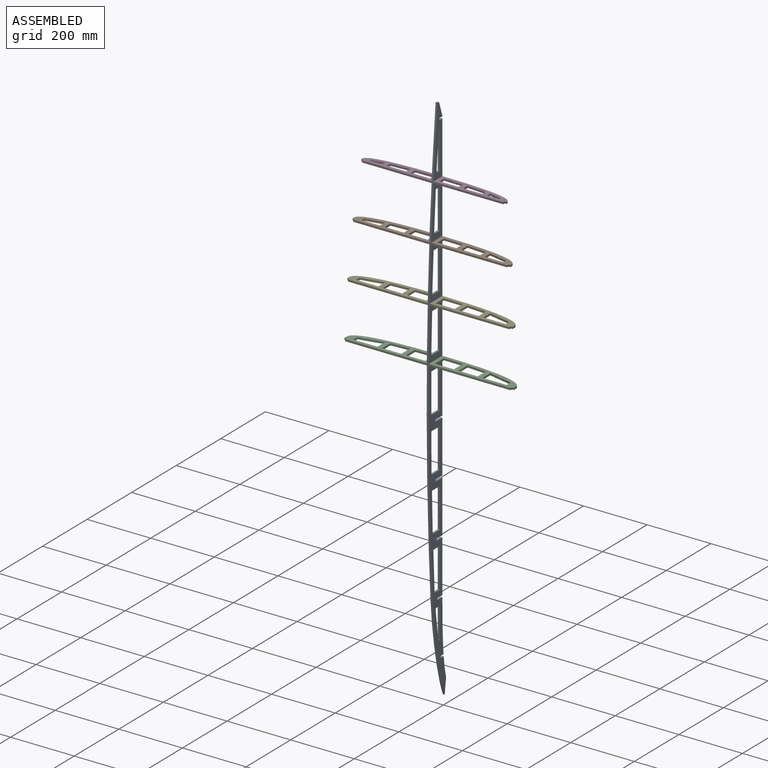
[diagram: assembled view]
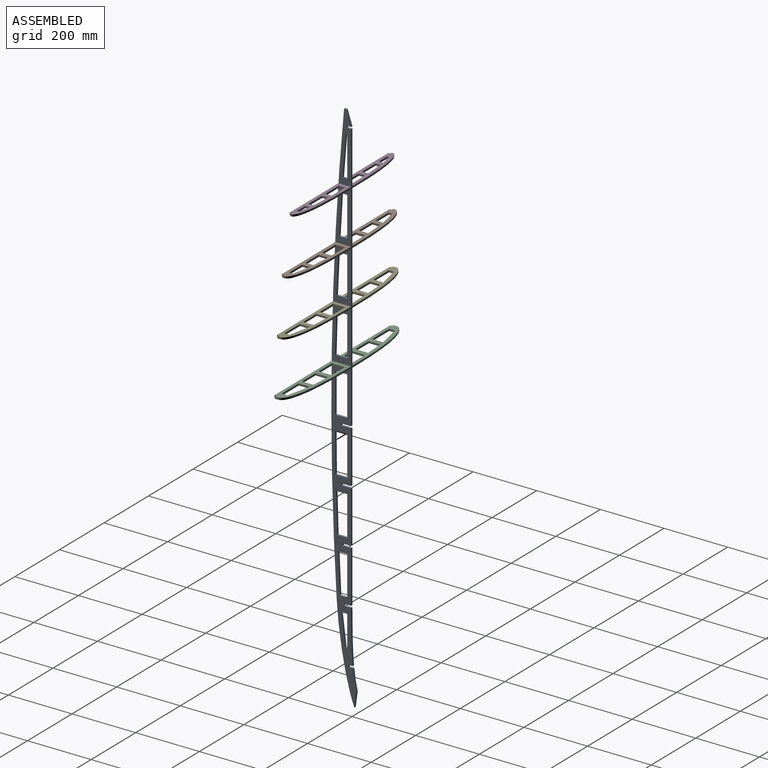
[diagram: assembled view, second angle]
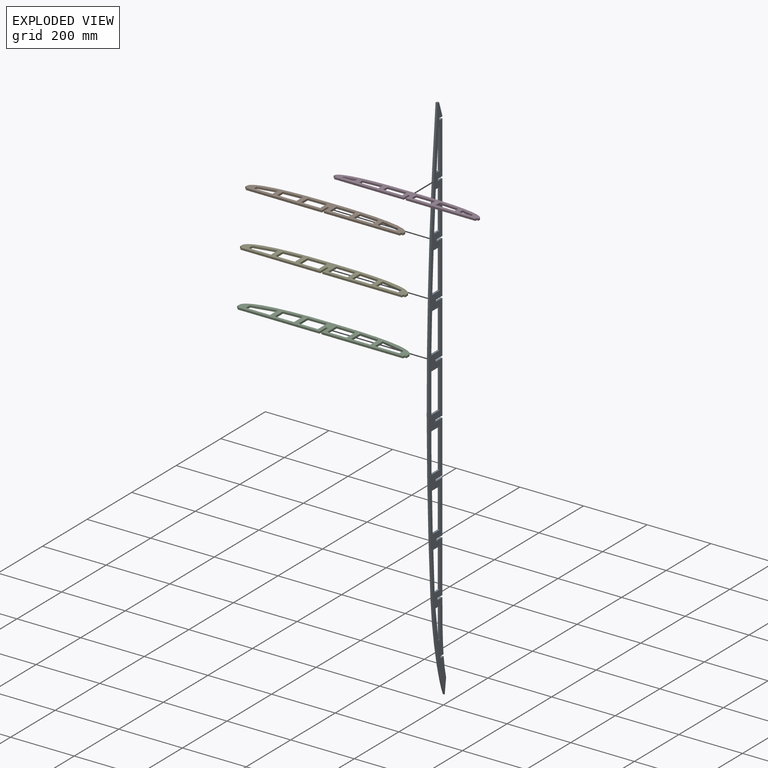
[diagram: exploded view]
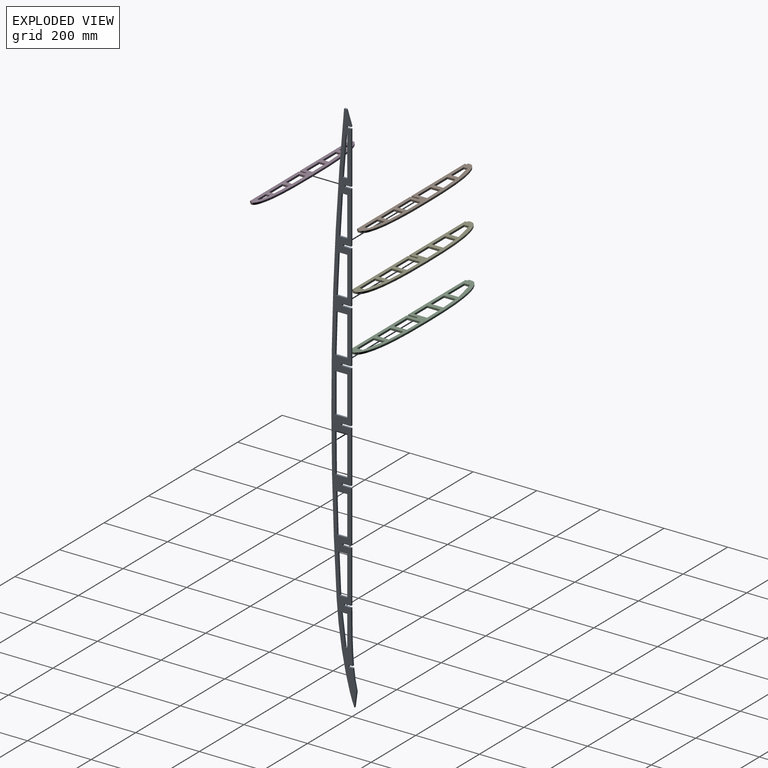
[diagram: exploded view, second angle]
ASSEMBLY  parts=5 mates=12
PART A: 85 faces, bbox 6x1693.4x78.8 mm
  f0: plane 1693.38x78.75mm, normal (-1,0,0), area 49565.2mm2, adj f2,f3,f4,f5,f6,f7,f8,f9
  f1: plane 1693.38x78.75mm, normal (1,0,0), area 49565.2mm2, adj f2,f3,f4,f5,f6,f7,f8,f9
  f2: extruded ~164x6mm, area 984.8mm2, adj f0,f1,f42,f43
  f3: extruded ~7x6mm, area 42mm2, adj f0,f1,f14,f40
  f4: plane 6x1.35mm, normal (0,0,1), area 8.1mm2, adj f0,f1,f15,f46
  f5: plane 164x6mm, normal (0,0,1), area 984mm2, adj f0,f1,f36,f37
  f6: plane 164x6mm, normal (0,0,1), area 984mm2, adj f0,f1,f33,f34
  f7: plane 164x6mm, normal (0,0,1), area 984mm2, adj f0,f1,f30,f31
  f8: plane 164x6mm, normal (0,0,1), area 984mm2, adj f0,f1,f27,f28
  f9: plane 164x6mm, normal (0,0,1), area 984mm2, adj f0,f1,f24,f25
  f10: plane 164x6mm, normal (0,0,1), area 984mm2, adj f0,f1,f20,f22
  f11: plane 164x6mm, normal (0,0,1), area 984mm2, adj f0,f1,f21,f48
  f12: plane 46.78x6.28mm, normal (0,0.13,0.99), area 283.2mm2, adj f0,f1,f13,f18
  f13: extruded ~63.71x10.99mm, area 388.3mm2, adj f0,f1,f12,f45
  f14: plane 157x6mm, normal (0,0,1), area 942mm2, adj f0,f1,f3,f39
  f15: plane 44.38x14.79mm, normal (0,-0.32,0.95), area 280.7mm2, adj f0,f1,f4,f16
  f16: plane 7.22x6mm, normal (0,-0.99,0.12), area 43.7mm2, adj f0,f1,f15,f17
  f17: cylinder r=9047.25mm len=1399.38mm, axis (1,0,0), area 8405.8mm2, adj f0,f1,f16,f18
  f18: extruded ~293.72x55.75mm, area 1800mm2, adj f0,f1,f12,f17
  f19: plane 6x6mm, normal (0,0,1), area 36mm2, adj f0,f1,f20,f21
  f20: plane 20.02x6mm, normal (0,-1,0), area 120.1mm2, adj f0,f1,f10,f19
  f21: plane 20.02x6mm, normal (0,1,0), area 120.1mm2, adj f0,f1,f11,f19
  f22: plane 25.15x6mm, normal (0,1,0), area 150.9mm2, adj f0,f1,f10,f23
  f23: plane 6x6mm, normal (0,0,1), area 36mm2, adj f0,f1,f22,f24
  f24: plane 25.15x6mm, normal (0,-1,0), area 150.9mm2, adj f0,f1,f9,f23
  f25: plane 28.68x6mm, normal (0,1,0), area 172.1mm2, adj f0,f1,f9,f26
  f26: plane 6x6mm, normal (0,0,1), area 36mm2, adj f0,f1,f25,f27
  f27: plane 28.68x6mm, normal (0,-1,0), area 172.1mm2, adj f0,f1,f8,f26
  f28: plane 30.6x6mm, normal (0,1,0), area 183.6mm2, adj f0,f1,f8,f29
  f29: plane 6x6mm, normal (0,0,1), area 36mm2, adj f0,f1,f28,f30
  f30: plane 30.6x6mm, normal (0,-1,0), area 183.6mm2, adj f0,f1,f7,f29
  f31: plane 30.93x6mm, normal (0,1,0), area 185.6mm2, adj f0,f1,f7,f32
  f32: plane 6x6mm, normal (0,0,1), area 36mm2, adj f0,f1,f31,f33
  f33: plane 30.93x6mm, normal (0,-1,0), area 185.6mm2, adj f0,f1,f6,f32
  f34: plane 29.66x6mm, normal (0,1,0), area 178mm2, adj f0,f1,f6,f35
  f35: plane 6x6mm, normal (0,0,1), area 36mm2, adj f0,f1,f34,f36
  f36: plane 29.66x6mm, normal (0,-1,0), area 178mm2, adj f0,f1,f5,f35
  f37: plane 26.8x6mm, normal (0,1,0), area 160.8mm2, adj f0,f1,f5,f38
  f38: plane 6x6mm, normal (0,0,1), area 36mm2, adj f0,f1,f37,f39
  f39: plane 26.8x6mm, normal (0,-1,0), area 160.8mm2, adj f0,f1,f14,f38
  f40: plane 22.3x6mm, normal (0,1,0), area 133.8mm2, adj f0,f1,f3,f41
  f41: plane 6x6mm, normal (0,0,1), area 36mm2, adj f0,f1,f40,f42
  f42: plane 22.3x6mm, normal (0,-1,0), area 133.8mm2, adj f0,f1,f2,f41
  f43: plane 13.13x6mm, normal (0,1,0), area 78.8mm2, adj f0,f1,f2,f44
  f44: plane 6x6mm, normal (0,0,1), area 36mm2, adj f0,f1,f43,f45
  f45: plane 13.73x6mm, normal (0,-1,0), area 82.4mm2, adj f0,f1,f13,f44
  f46: plane 13.28x6mm, normal (0,1,0), area 79.7mm2, adj f0,f1,f4,f47
  f47: plane 6x6mm, normal (0,0,1), area 36mm2, adj f0,f1,f46,f48
  f48: plane 13.28x6mm, normal (0,-1,0), area 79.7mm2, adj f0,f1,f11,f47
  f49: plane 96.09x6mm, normal (0,0,-1), area 576.5mm2, adj f0,f1,f50,f52
  f50: plane 18.69x6mm, normal (0,1,0), area 112.1mm2, adj f0,f1,f49,f51
  f51: plane 96.09x12.25mm, normal (0,-0.13,0.99), area 581.2mm2, adj f0,f1,f50,f52
  f52: plane 6.44x6mm, normal (0,-1,0), area 38.6mm2, adj f0,f1,f49,f51
  f53: plane 124x6mm, normal (0,0,-1), area 744mm2, adj f0,f1,f54,f56
  f54: plane 28.56x6mm, normal (0,1,0), area 171.3mm2, adj f0,f1,f53,f55
  f55: plane 124x6mm, normal (0,-0.05,1), area 744.8mm2, adj f0,f1,f54,f56
  f56: plane 22.88x6mm, normal (0,-1,0), area 137.3mm2, adj f0,f1,f53,f55
  f57: plane 124x6mm, normal (0,0,-1), area 744mm2, adj f0,f1,f58,f60
  f58: plane 34.73x6mm, normal (0,1,0), area 208.4mm2, adj f0,f1,f57,f59
  f59: plane 124x6mm, normal (0,-0.03,1), area 744.3mm2, adj f0,f1,f58,f60
  f60: plane 31.4x6mm, normal (0,-1,0), area 188.4mm2, adj f0,f1,f57,f59
  f61: plane 36.7x6mm, normal (0,-1,0), area 220.2mm2, adj f0,f1,f62,f64
  f62: plane 124x6mm, normal (0,0,-1), area 744mm2, adj f0,f1,f61,f63
  f63: plane 37.71x6mm, normal (0,1,0), area 226.2mm2, adj f0,f1,f62,f64
  f64: plane 124x6mm, normal (0,-0.01,1), area 744mm2, adj f0,f1,f61,f63
  f65: plane 124x6mm, normal (0,0,-1), area 744mm2, adj f0,f1,f66,f68
  f66: plane 37.48x6mm, normal (0,1,0), area 224.9mm2, adj f0,f1,f65,f67
  f67: plane 124x6mm, normal (0,0,1), area 744mm2, adj f0,f1,f66,f68
  f68: plane 37.48x6mm, normal (0,-1,0), area 224.9mm2, adj f0,f1,f65,f67
  f69: plane 124x6mm, normal (0,0,-1), area 744mm2, adj f0,f1,f70,f72
  f70: plane 34.05x6mm, normal (0,1,0), area 204.3mm2, adj f0,f1,f69,f71
  f71: plane 124x6mm, normal (0,0.03,1), area 744.3mm2, adj f0,f1,f70,f72
  f72: plane 37.72x6mm, normal (0,-1,0), area 226.3mm2, adj f0,f1,f69,f71
  f73: plane 124x6mm, normal (0,0,-1), area 744mm2, adj f0,f1,f74,f76
  f74: plane 27.43x6mm, normal (0,1,0), area 164.6mm2, adj f0,f1,f73,f75
  f75: plane 124x6mm, normal (0,0.05,1), area 744.9mm2, adj f0,f1,f74,f76
  f76: plane 33.43x6mm, normal (0,-1,0), area 200.6mm2, adj f0,f1,f73,f75
  f77: plane 124x6mm, normal (0,0,-1), area 744mm2, adj f0,f1,f78,f80
  f78: plane 17.59x6mm, normal (0,1,0), area 105.5mm2, adj f0,f1,f77,f79
  f79: plane 124x7.49mm, normal (0,0.06,1), area 745.4mm2, adj f0,f1,f78,f80
  f80: plane 25.08x6mm, normal (0,-1,0), area 150.5mm2, adj f0,f1,f77,f79
  f81: plane 124x6mm, normal (0,0,-1), area 744mm2, adj f0,f1,f82,f84
  f82: plane 6x4.53mm, normal (0,1,0), area 27.2mm2, adj f0,f1,f81,f83
  f83: plane 124x9.84mm, normal (0,0.08,1), area 746.3mm2, adj f0,f1,f82,f84
  f84: plane 14.37x6mm, normal (0,-1,0), area 86.2mm2, adj f0,f1,f81,f83
PART B: 39 faces, bbox 495.8x50.3x6 mm
  f0: plane 6.66x6mm, normal (1,0,0), area 39.9mm2, adj f1,f3,f4,f20
  f1: plane 495.8x50.3mm, normal (0,0,1), area 12732.4mm2, adj f0,f2,f4,f5,f6,f7,f8,f9
  f2: plane 238.9x6mm, normal (0,-1,0), area 1433.4mm2, adj f1,f3,f17,f19
  f3: plane 495.8x50.3mm, normal (0,0,-1), area 12732.4mm2, adj f0,f2,f4,f5,f6,f7,f8,f9
  f4: extruded ~247.9x37.64mm, area 1547.7mm2, adj f0,f1,f3,f23
  f5: plane 57.9x6mm, normal (0,1,0), area 347.4mm2, adj f1,f3,f6,f8
  f6: plane 11.73x6mm, normal (-1,0,0), area 70.4mm2, adj f1,f3,f5,f7
  f7: plane 57.9x11.92mm, normal (-0.2,-0.98,0), area 354.7mm2, adj f1,f3,f6,f8
  f8: plane 23.65x6mm, normal (1,0,0), area 141.9mm2, adj f1,f3,f5,f7
  f9: plane 60x6mm, normal (0,1,0), area 360mm2, adj f1,f3,f10,f12
  f10: plane 25.24x6mm, normal (-1,0,0), area 151.4mm2, adj f1,f3,f9,f11
  f11: plane 60x6mm, normal (-0.06,-1,0), area 360.7mm2, adj f1,f3,f10,f12
  f12: plane 29x6mm, normal (1,0,0), area 174mm2, adj f1,f3,f9,f11
  f13: plane 60x6mm, normal (0,1,0), area 360mm2, adj f1,f3,f14,f16
  f14: plane 29.49x6mm, normal (-1,0,0), area 176.9mm2, adj f1,f3,f13,f15
  f15: plane 60x6mm, normal (-0.01,-1,0), area 360mm2, adj f1,f3,f14,f16
  f16: plane 30.29x6mm, normal (1,0,0), area 181.7mm2, adj f1,f3,f13,f15
  f17: plane 25.15x6mm, normal (-1,0,0), area 150.9mm2, adj f1,f2,f3,f18
  f18: plane 6x6mm, normal (0,-1,0), area 36mm2, adj f1,f3,f17,f36
  f19: plane 6x6mm, normal (1,0,0), area 36mm2, adj f1,f2,f3,f20
  f20: plane 6x6mm, normal (0,-1,0), area 36mm2, adj f0,f1,f3,f19
  f21: plane 6.66x6mm, normal (-1,0,0), area 39.9mm2, adj f1,f3,f23,f38
  f22: plane 238.9x6mm, normal (0,-1,0), area 1433.4mm2, adj f1,f3,f36,f37
  f23: extruded ~247.9x37.64mm, area 1547.7mm2, adj f1,f3,f4,f21
  f24: plane 57.9x6mm, normal (0,1,0), area 347.4mm2, adj f1,f3,f25,f27
  f25: plane 11.73x6mm, normal (1,0,0), area 70.4mm2, adj f1,f3,f24,f26
  f26: plane 57.9x11.92mm, normal (0.2,-0.98,0), area 354.7mm2, adj f1,f3,f25,f27
  f27: plane 23.65x6mm, normal (-1,0,0), area 141.9mm2, adj f1,f3,f24,f26
  f28: plane 60x6mm, normal (0,1,0), area 360mm2, adj f1,f3,f29,f31
  f29: plane 25.24x6mm, normal (1,0,0), area 151.4mm2, adj f1,f3,f28,f30
  f30: plane 60x6mm, normal (0.06,-1,0), area 360.7mm2, adj f1,f3,f29,f31
  f31: plane 29x6mm, normal (-1,0,0), area 174mm2, adj f1,f3,f28,f30
  f32: plane 60x6mm, normal (0,1,0), area 360mm2, adj f1,f3,f33,f35
  f33: plane 29.49x6mm, normal (1,0,0), area 176.9mm2, adj f1,f3,f32,f34
  f34: plane 60x6mm, normal (0.01,-1,0), area 360mm2, adj f1,f3,f33,f35
  f35: plane 30.29x6mm, normal (-1,0,0), area 181.7mm2, adj f1,f3,f32,f34
  f36: plane 25.15x6mm, normal (1,0,0), area 150.9mm2, adj f1,f3,f18,f22
  f37: plane 6x6mm, normal (-1,0,0), area 36mm2, adj f1,f3,f22,f38
  f38: plane 6x6mm, normal (0,-1,0), area 36mm2, adj f1,f3,f21,f37
PART C: 39 faces, bbox 532x61.2x6 mm
  f0: plane 9.77x6mm, normal (1,0,0), area 58.6mm2, adj f1,f3,f4,f20
  f1: plane 532x61.2mm, normal (0,0,1), area 14832.5mm2, adj f0,f2,f4,f5,f6,f7,f8,f9
  f2: plane 257x6mm, normal (0,-1,0), area 1542mm2, adj f1,f3,f17,f19
  f3: plane 532x61.2mm, normal (0,0,-1), area 14832.5mm2, adj f0,f2,f4,f5,f6,f7,f8,f9
  f4: extruded ~266x45.43mm, area 1674mm2, adj f0,f1,f3,f23
  f5: plane 76x6mm, normal (0,1,0), area 456mm2, adj f1,f3,f6,f8
  f6: plane 18x6mm, normal (-1,0,0), area 108mm2, adj f1,f3,f5,f7
  f7: plane 76x16.53mm, normal (-0.21,-0.98,0), area 466.7mm2, adj f1,f3,f6,f8
  f8: plane 34.53x6mm, normal (1,0,0), area 207.2mm2, adj f1,f3,f5,f7
  f9: plane 60x6mm, normal (0,1,0), area 360mm2, adj f1,f3,f10,f12
  f10: plane 36.06x6mm, normal (-1,0,0), area 216.4mm2, adj f1,f3,f9,f11
  f11: plane 60x6mm, normal (-0.06,-1,0), area 360.7mm2, adj f1,f3,f10,f12
  f12: plane 39.82x6mm, normal (1,0,0), area 238.9mm2, adj f1,f3,f9,f11
  f13: plane 60x6mm, normal (0,1,0), area 360mm2, adj f1,f3,f14,f16
  f14: plane 40.33x6mm, normal (-1,0,0), area 242mm2, adj f1,f3,f13,f15
  f15: plane 60x6mm, normal (-0.01,-1,0), area 360mm2, adj f1,f3,f14,f16
  f16: plane 41.19x6mm, normal (1,0,0), area 247.1mm2, adj f1,f3,f13,f15
  f17: plane 30.6x6mm, normal (-1,0,0), area 183.6mm2, adj f1,f2,f3,f18
  f18: plane 6x6mm, normal (0,-1,0), area 36mm2, adj f1,f3,f17,f36
  f19: plane 6x6mm, normal (1,0,0), area 36mm2, adj f1,f2,f3,f20
  f20: plane 6x6mm, normal (0,-1,0), area 36mm2, adj f0,f1,f3,f19
  f21: plane 9.77x6mm, normal (-1,0,0), area 58.6mm2, adj f1,f3,f23,f38
  f22: plane 257x6mm, normal (0,-1,0), area 1542mm2, adj f1,f3,f36,f37
  f23: extruded ~266x45.43mm, area 1674mm2, adj f1,f3,f4,f21
  f24: plane 76x6mm, normal (0,1,0), area 456mm2, adj f1,f3,f25,f27
  f25: plane 18x6mm, normal (1,0,0), area 108mm2, adj f1,f3,f24,f26
  f26: plane 76x16.53mm, normal (0.21,-0.98,0), area 466.7mm2, adj f1,f3,f25,f27
  f27: plane 34.53x6mm, normal (-1,0,0), area 207.2mm2, adj f1,f3,f24,f26
  f28: plane 60x6mm, normal (0,1,0), area 360mm2, adj f1,f3,f29,f31
  f29: plane 36.06x6mm, normal (1,0,0), area 216.4mm2, adj f1,f3,f28,f30
  f30: plane 60x6mm, normal (0.06,-1,0), area 360.7mm2, adj f1,f3,f29,f31
  f31: plane 39.82x6mm, normal (-1,0,0), area 238.9mm2, adj f1,f3,f28,f30
  f32: plane 60x6mm, normal (0,1,0), area 360mm2, adj f1,f3,f33,f35
  f33: plane 40.33x6mm, normal (1,0,0), area 242mm2, adj f1,f3,f32,f34
  f34: plane 60x6mm, normal (0.01,-1,0), area 360mm2, adj f1,f3,f33,f35
  f35: plane 41.19x6mm, normal (-1,0,0), area 247.1mm2, adj f1,f3,f32,f34
  f36: plane 30.6x6mm, normal (1,0,0), area 183.6mm2, adj f1,f3,f18,f22
  f37: plane 6x6mm, normal (-1,0,0), area 36mm2, adj f1,f3,f22,f38
  f38: plane 6x6mm, normal (0,-1,0), area 36mm2, adj f1,f3,f21,f37
PART D: 39 faces, bbox 455.6x40x6 mm
  f0: plane 6x3.71mm, normal (1,0,0), area 22.3mm2, adj f1,f3,f4,f20
  f1: plane 455.6x40mm, normal (0,0,1), area 10674.1mm2, adj f0,f2,f4,f5,f6,f7,f8,f9
  f2: plane 218.8x6mm, normal (0,-1,0), area 1312.8mm2, adj f1,f3,f17,f19
  f3: plane 455.6x40mm, normal (0,0,-1), area 10674.1mm2, adj f0,f2,f4,f5,f6,f7,f8,f9
  f4: extruded ~227.8x30.29mm, area 1411.3mm2, adj f0,f1,f3,f23
  f5: plane 37.8x6mm, normal (0,1,0), area 226.8mm2, adj f1,f3,f6,f8
  f6: plane 6x5.7mm, normal (-1,0,0), area 34.2mm2, adj f1,f3,f5,f7
  f7: plane 37.8x7.49mm, normal (-0.19,-0.98,0), area 231.2mm2, adj f1,f3,f6,f8
  f8: plane 13.19x6mm, normal (1,0,0), area 79.1mm2, adj f1,f3,f5,f7
  f9: plane 60x6mm, normal (0,1,0), area 360mm2, adj f1,f3,f10,f12
  f10: plane 14.92x6mm, normal (-1,0,0), area 89.5mm2, adj f1,f3,f9,f11
  f11: plane 60x6mm, normal (-0.06,-1,0), area 360.7mm2, adj f1,f3,f10,f12
  f12: plane 18.77x6mm, normal (1,0,0), area 112.6mm2, adj f1,f3,f9,f11
  f13: plane 60x6mm, normal (0,1,0), area 360mm2, adj f1,f3,f14,f16
  f14: plane 19.24x6mm, normal (-1,0,0), area 115.4mm2, adj f1,f3,f13,f15
  f15: plane 60x6mm, normal (-0.01,-1,0), area 360mm2, adj f1,f3,f14,f16
  f16: plane 19.99x6mm, normal (1,0,0), area 119.9mm2, adj f1,f3,f13,f15
  f17: plane 20x6mm, normal (-1,0,0), area 120mm2, adj f1,f2,f3,f18
  f18: plane 6x6mm, normal (0,-1,0), area 36mm2, adj f1,f3,f17,f36
  f19: plane 6x6mm, normal (1,0,0), area 36mm2, adj f1,f2,f3,f20
  f20: plane 6x6mm, normal (0,-1,0), area 36mm2, adj f0,f1,f3,f19
  f21: plane 6x3.71mm, normal (-1,0,0), area 22.3mm2, adj f1,f3,f23,f38
  f22: plane 218.8x6mm, normal (0,-1,0), area 1312.8mm2, adj f1,f3,f36,f37
  f23: extruded ~227.8x30.29mm, area 1411.3mm2, adj f1,f3,f4,f21
  f24: plane 37.8x6mm, normal (0,1,0), area 226.8mm2, adj f1,f3,f25,f27
  f25: plane 6x5.7mm, normal (1,0,0), area 34.2mm2, adj f1,f3,f24,f26
  f26: plane 37.8x7.49mm, normal (0.19,-0.98,0), area 231.2mm2, adj f1,f3,f25,f27
  f27: plane 13.19x6mm, normal (-1,0,0), area 79.1mm2, adj f1,f3,f24,f26
  f28: plane 60x6mm, normal (0,1,0), area 360mm2, adj f1,f3,f29,f31
  f29: plane 14.92x6mm, normal (1,0,0), area 89.5mm2, adj f1,f3,f28,f30
  f30: plane 60x6mm, normal (0.06,-1,0), area 360.7mm2, adj f1,f3,f29,f31
  f31: plane 18.77x6mm, normal (-1,0,0), area 112.6mm2, adj f1,f3,f28,f30
  f32: plane 60x6mm, normal (0,1,0), area 360mm2, adj f1,f3,f33,f35
  f33: plane 19.24x6mm, normal (1,0,0), area 115.4mm2, adj f1,f3,f32,f34
  f34: plane 60x6mm, normal (0.01,-1,0), area 360mm2, adj f1,f3,f33,f35
  f35: plane 19.99x6mm, normal (-1,0,0), area 119.9mm2, adj f1,f3,f32,f34
  f36: plane 20x6mm, normal (1,0,0), area 120mm2, adj f1,f3,f18,f22
  f37: plane 6x6mm, normal (-1,0,0), area 36mm2, adj f1,f3,f22,f38
  f38: plane 6x6mm, normal (0,-1,0), area 36mm2, adj f1,f3,f21,f37
PART E: 39 faces, bbox 519.4x57.4x6 mm
  f0: plane 8.69x6mm, normal (1,0,0), area 52.1mm2, adj f1,f3,f4,f20
  f1: plane 519.4x57.4mm, normal (0,0,1), area 14093.5mm2, adj f0,f2,f4,f5,f6,f7,f8,f9
  f2: plane 250.7x6mm, normal (0,-1,0), area 1504.2mm2, adj f1,f3,f17,f19
  f3: plane 519.4x57.4mm, normal (0,0,-1), area 14093.5mm2, adj f0,f2,f4,f5,f6,f7,f8,f9
  f4: extruded ~259.7x42.71mm, area 1630mm2, adj f0,f1,f3,f23
  f5: plane 69.7x6mm, normal (0,1,0), area 418.2mm2, adj f1,f3,f6,f8
  f6: plane 15.84x6mm, normal (-1,0,0), area 95mm2, adj f1,f3,f5,f7
  f7: plane 69.7x14.89mm, normal (-0.21,-0.98,0), area 427.6mm2, adj f1,f3,f6,f8
  f8: plane 30.73x6mm, normal (1,0,0), area 184.4mm2, adj f1,f3,f5,f7
  f9: plane 60x6mm, normal (0,1,0), area 360mm2, adj f1,f3,f10,f12
  f10: plane 32.29x6mm, normal (-1,0,0), area 193.7mm2, adj f1,f3,f9,f11
  f11: plane 60x6mm, normal (-0.06,-1,0), area 360.7mm2, adj f1,f3,f10,f12
  f12: plane 36.05x6mm, normal (1,0,0), area 216.3mm2, adj f1,f3,f9,f11
  f13: plane 60x6mm, normal (0,1,0), area 360mm2, adj f1,f3,f14,f16
  f14: plane 36.55x6mm, normal (-1,0,0), area 219.3mm2, adj f1,f3,f13,f15
  f15: plane 60x6mm, normal (-0.01,-1,0), area 360mm2, adj f1,f3,f14,f16
  f16: plane 37.39x6mm, normal (1,0,0), area 224.3mm2, adj f1,f3,f13,f15
  f17: plane 28.7x6mm, normal (-1,0,0), area 172.2mm2, adj f1,f2,f3,f18
  f18: plane 6x6mm, normal (0,-1,0), area 36mm2, adj f1,f3,f17,f36
  f19: plane 6x6mm, normal (1,0,0), area 36mm2, adj f1,f2,f3,f20
  f20: plane 6x6mm, normal (0,-1,0), area 36mm2, adj f0,f1,f3,f19
  f21: plane 8.69x6mm, normal (-1,0,0), area 52.1mm2, adj f1,f3,f23,f38
  f22: plane 250.7x6mm, normal (0,-1,0), area 1504.2mm2, adj f1,f3,f36,f37
  f23: extruded ~259.7x42.71mm, area 1630mm2, adj f1,f3,f4,f21
  f24: plane 69.7x6mm, normal (0,1,0), area 418.2mm2, adj f1,f3,f25,f27
  f25: plane 15.84x6mm, normal (1,0,0), area 95mm2, adj f1,f3,f24,f26
  f26: plane 69.7x14.89mm, normal (0.21,-0.98,0), area 427.6mm2, adj f1,f3,f25,f27
  f27: plane 30.73x6mm, normal (-1,0,0), area 184.4mm2, adj f1,f3,f24,f26
  f28: plane 60x6mm, normal (0,1,0), area 360mm2, adj f1,f3,f29,f31
  f29: plane 32.29x6mm, normal (1,0,0), area 193.7mm2, adj f1,f3,f28,f30
  f30: plane 60x6mm, normal (0.06,-1,0), area 360.7mm2, adj f1,f3,f29,f31
  f31: plane 36.05x6mm, normal (-1,0,0), area 216.3mm2, adj f1,f3,f28,f30
  f32: plane 60x6mm, normal (0,1,0), area 360mm2, adj f1,f3,f33,f35
  f33: plane 36.55x6mm, normal (1,0,0), area 219.3mm2, adj f1,f3,f32,f34
  f34: plane 60x6mm, normal (0.01,-1,0), area 360mm2, adj f1,f3,f33,f35
  f35: plane 37.39x6mm, normal (-1,0,0), area 224.3mm2, adj f1,f3,f32,f34
  f36: plane 28.7x6mm, normal (1,0,0), area 172.2mm2, adj f1,f3,f18,f22
  f37: plane 6x6mm, normal (-1,0,0), area 36mm2, adj f1,f3,f22,f38
  f38: plane 6x6mm, normal (0,-1,0), area 36mm2, adj f1,f3,f21,f37
PLACE A rot(axis=(-1,0,0),90deg) t=(-603.65,330.45,595.04)mm
PLACE B t=(-603.65,342.15,205.04)mm
PLACE C t=(-603.65,331.25,-134.96)mm
PLACE D t=(-603.65,352.43,375.04)mm
PLACE E rot(axis=(0,-1,0),180deg) t=(-603.65,335.07,35.04)mm
MATE planar A.f19 <-> D.f18  axis (0,1,0) through (-600.65,376.43,375.04)mm
MATE planar E.f17 <-> A.f0  axis (1,0,0) through (-606.65,353.42,35.04)mm
MATE planar B.f36 <-> A.f0  axis (1,0,0) through (-606.65,358.73,205.04)mm
MATE planar D.f36 <-> A.f0  axis (1,0,0) through (-606.65,366.43,372.04)mm
MATE planar C.f36 <-> A.f0  axis (1,0,0) through (-606.65,350.55,-134.96)mm
MATE planar A.f25 <-> E.f3  axis (0,0,-1) through (-603.65,382.11,38.04)mm
MATE planar D.f1 <-> A.f21  axis (0,0,1) through (-618.65,386.42,378.04)mm
MATE planar A.f23 <-> B.f18  axis (0,1,0) through (-603.65,371.3,205.04)mm
MATE planar B.f1 <-> A.f22  axis (0,0,1) through (-603.6,368.78,208.04)mm
MATE planar C.f18 <-> A.f29  axis (0,-1,0) through (-603.65,365.85,-134.96)mm
MATE planar A.f30 <-> C.f3  axis (0,0,1) through (-603.65,381.15,-137.96)mm
MATE planar A.f26 <-> E.f18  axis (0,1,0) through (-603.65,367.77,35.04)mm
